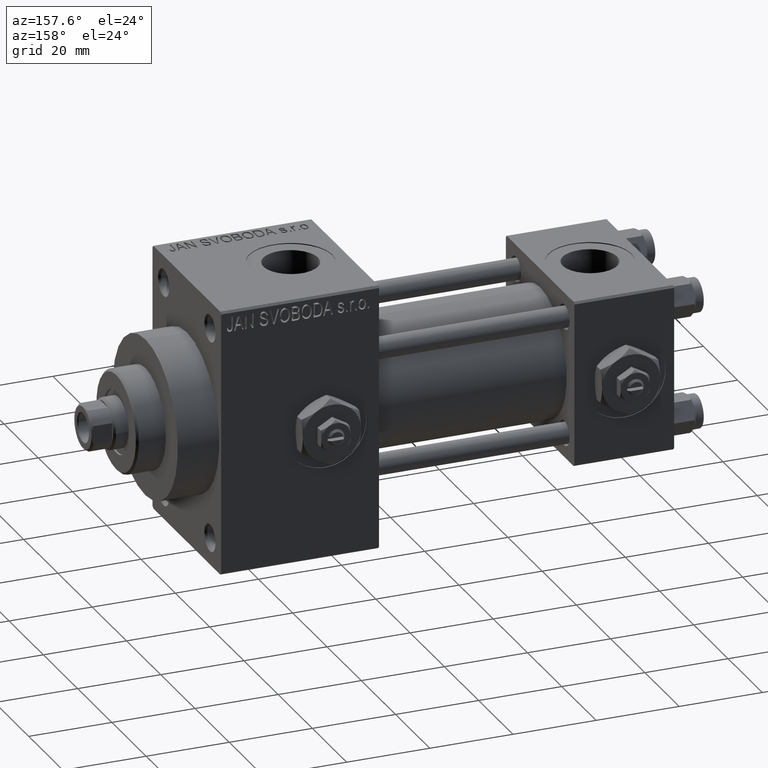
[diagram: clean part render]
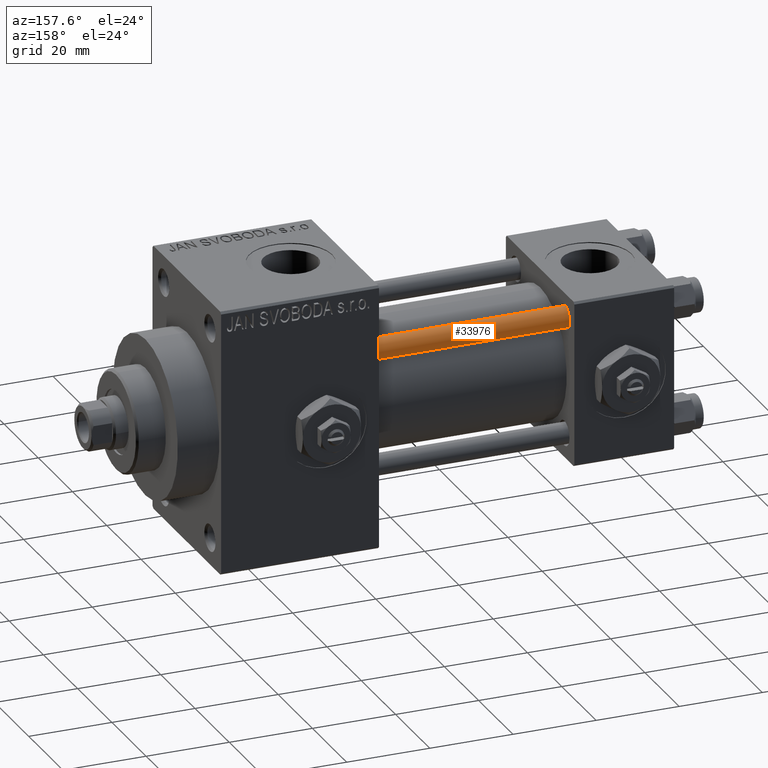
[diagram: same view with one face highlighted and labeled with its STEP entity id]
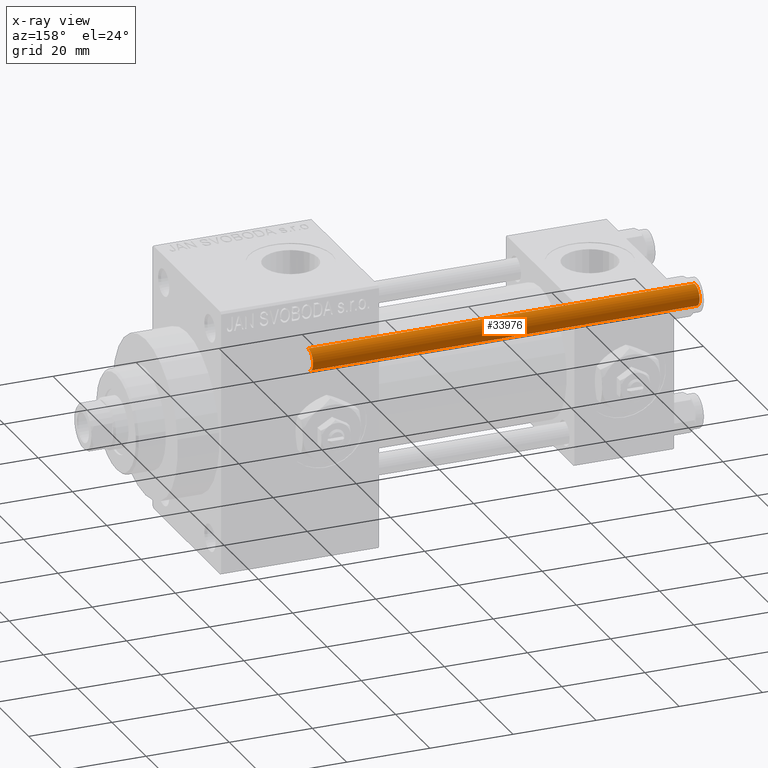
[diagram: x-ray of the same camera — body ghosted, the highlighted face saturated]
A machine part, auxiliary view. The second image highlights one B-rep face of the part: STEP entity #33976.
The next image is the same camera in x-ray: the body ghosted, the highlighted face saturated — about 0% of this face is hidden behind the body in this view.
In plain terms, the highlighted cylindrical surface (edge-blend (fillet) strip) has radius 2.5 mm, axis along (-1, -0, 0).
Its self-contained STEP definition (entity closure, byte-faithful):
#305 = DIRECTION ( 'NONE',  ( -1.000000000000000000, 0.000000000000000000, 0.000000000000000000 ) ) ;
#329 = ORIENTED_EDGE ( 'NONE', *, *, #23176, .T. ) ;
#2155 = VERTEX_POINT ( 'NONE', #15953 ) ;
#2195 = CARTESIAN_POINT ( 'NONE',  ( -2.500000000000000000, 0.000000000000000000, 0.5000000000000004441 ) ) ;
#4993 = VERTEX_POINT ( 'NONE', #2195 ) ;
#5744 = DIRECTION ( 'NONE',  ( -0.000000000000000000, -0.000000000000000000, -1.000000000000000000 ) ) ;
#6234 = LINE ( 'NONE', #17883, #47217 ) ;
#6391 = DIRECTION ( 'NONE',  ( 1.000000000000000000, 0.000000000000000000, 0.000000000000000000 ) ) ;
#6776 = CARTESIAN_POINT ( 'NONE',  ( 2.500000000000000000, 3.061616997868383141E-16, 93.50000000000001421 ) ) ;
#9842 = EDGE_CURVE ( 'NONE', #43337, #2155, #21375, .T. ) ;
#9992 = AXIS2_PLACEMENT_3D ( 'NONE', #25243, #10102, #6391 ) ;
#10102 = DIRECTION ( 'NONE',  ( 0.000000000000000000, 0.000000000000000000, -1.000000000000000000 ) ) ;
#11504 = CIRCLE ( 'NONE', #12303, 2.500000000000000000 ) ;
#11700 = CYLINDRICAL_SURFACE ( 'NONE', #11711, 2.500000000000000000 ) ;
#11711 = AXIS2_PLACEMENT_3D ( 'NONE', #31261, #42231, #305 ) ;
#12303 = AXIS2_PLACEMENT_3D ( 'NONE', #32888, #41102, #37603 ) ;
#12366 = CIRCLE ( 'NONE', #9992, 2.500000000000000000 ) ;
#13782 = VERTEX_POINT ( 'NONE', #46787 ) ;
#13787 = VECTOR ( 'NONE', #5744, 1000.000000000000000 ) ;
#14604 = EDGE_LOOP ( 'NONE', ( #31705, #17942, #329, #45440 ) ) ;
#15639 = EDGE_CURVE ( 'NONE', #13782, #43337, #12366, .T. ) ;
#15953 = CARTESIAN_POINT ( 'NONE',  ( 2.500000000000000000, 3.061616997868383141E-16, 0.5000000000000004441 ) ) ;
#17883 = CARTESIAN_POINT ( 'NONE',  ( -2.500000000000000000, 0.000000000000000000, 94.00000000000000000 ) ) ;
#17942 = ORIENTED_EDGE ( 'NONE', *, *, #9842, .T. ) ;
#19871 = FACE_OUTER_BOUND ( 'NONE', #14604, .T. ) ;
#21132 = CARTESIAN_POINT ( 'NONE',  ( 2.500000000000000000, 3.061616997868383141E-16, 94.00000000000000000 ) ) ;
#21375 = LINE ( 'NONE', #21132, #13787 ) ;
#23176 = EDGE_CURVE ( 'NONE', #2155, #4993, #11504, .T. ) ;
#25243 = CARTESIAN_POINT ( 'NONE',  ( 0.000000000000000000, 0.000000000000000000, 93.50000000000001421 ) ) ;
#27848 = EDGE_CURVE ( 'NONE', #13782, #4993, #6234, .T. ) ;
#31261 = CARTESIAN_POINT ( 'NONE',  ( 0.000000000000000000, 0.000000000000000000, 94.00000000000000000 ) ) ;
#31705 = ORIENTED_EDGE ( 'NONE', *, *, #15639, .T. ) ;
#32888 = CARTESIAN_POINT ( 'NONE',  ( 0.000000000000000000, 0.000000000000000000, 0.5000000000000004441 ) ) ;
#33005 = DIRECTION ( 'NONE',  ( -0.000000000000000000, -0.000000000000000000, -1.000000000000000000 ) ) ;
#33976 = ADVANCED_FACE ( 'NONE', ( #19871 ), #11700, .T. ) ;
#37603 = DIRECTION ( 'NONE',  ( 1.000000000000000000, 0.000000000000000000, 0.000000000000000000 ) ) ;
#41102 = DIRECTION ( 'NONE',  ( -0.000000000000000000, -0.000000000000000000, 1.000000000000000000 ) ) ;
#42231 = DIRECTION ( 'NONE',  ( -0.000000000000000000, -0.000000000000000000, -1.000000000000000000 ) ) ;
#43337 = VERTEX_POINT ( 'NONE', #6776 ) ;
#45440 = ORIENTED_EDGE ( 'NONE', *, *, #27848, .F. ) ;
#46787 = CARTESIAN_POINT ( 'NONE',  ( -2.500000000000000000, 0.000000000000000000, 93.50000000000001421 ) ) ;
#47217 = VECTOR ( 'NONE', #33005, 1000.000000000000000 ) ;